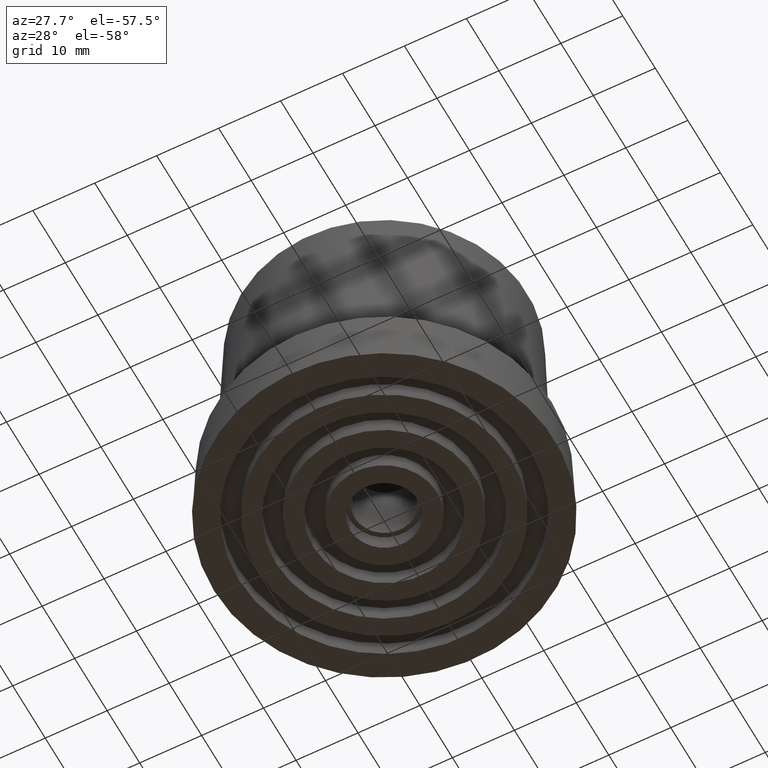
[diagram: clean part render]
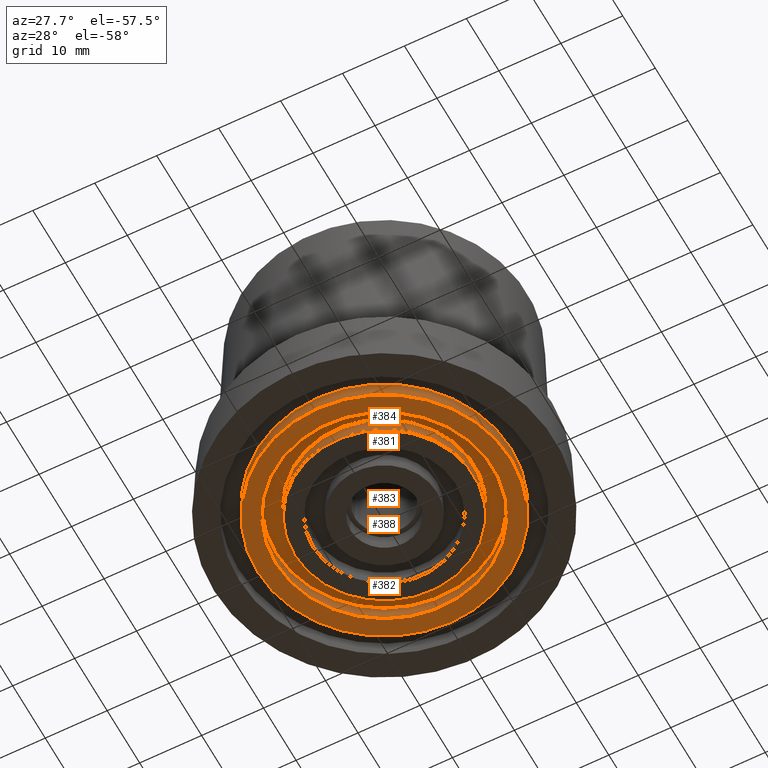
[diagram: same view with one multi-face feature highlighted, each face labeled with its STEP entity id]
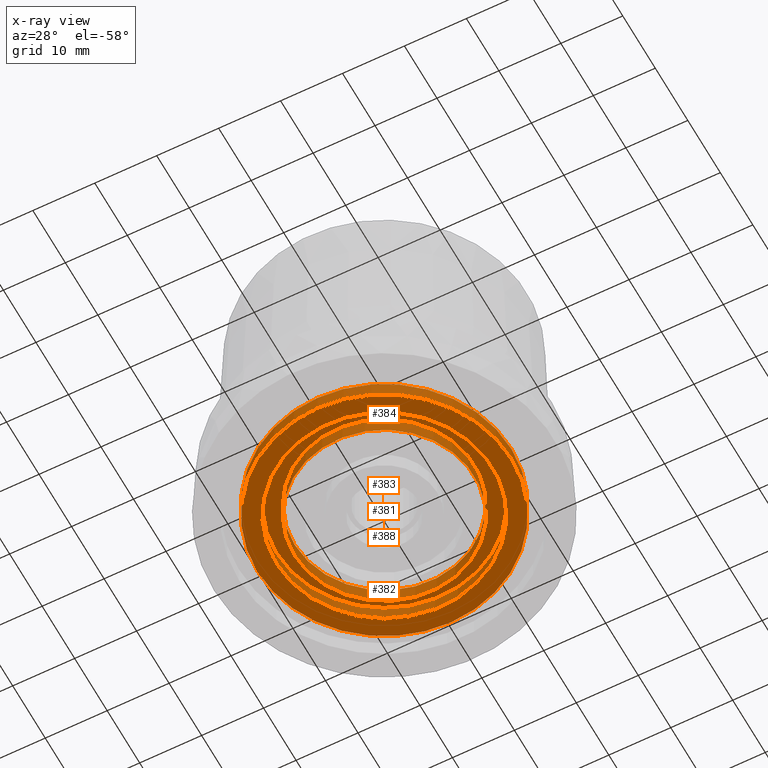
[diagram: x-ray of the same camera — body ghosted, the whole feature saturated]
A machine part, auxiliary view. The highlighted faces form ONE feature: a stepped (counterbored) hole: 3 coaxial cylindrical walls of radii 14.5 -> 17.5 -> 20.5 mm joined by 2 annular planar shoulder face(s). The faces share edges in the B-rep.
The next image is the same camera in x-ray: the body ghosted and the whole hole feature saturated, so the bore chain is visible through the body.
Their STEP definitions:
[1] entity #384 (Cylinder):
#44=FACE_BOUND('',#125,.T.);
#79=FACE_OUTER_BOUND('',#124,.T.);
#124=EDGE_LOOP('',(#304));
#125=EDGE_LOOP('',(#305));
#191=CIRCLE('',#435,20.5);
#192=CIRCLE('',#436,20.5);
#227=VERTEX_POINT('',#668);
#228=VERTEX_POINT('',#670);
#263=EDGE_CURVE('',#227,#227,#191,.T.);
#264=EDGE_CURVE('',#228,#228,#192,.T.);
#304=ORIENTED_EDGE('',*,*,#263,.T.);
#305=ORIENTED_EDGE('',*,*,#264,.F.);
#365=CYLINDRICAL_SURFACE('',#434,20.5);
#384=ADVANCED_FACE('',(#79,#44),#365,.T.);
#434=AXIS2_PLACEMENT_3D('',#667,#528,#529);
#435=AXIS2_PLACEMENT_3D('',#669,#530,#531);
#436=AXIS2_PLACEMENT_3D('',#671,#532,#533);
#528=DIRECTION('center_axis',(0.,0.,1.));
#529=DIRECTION('ref_axis',(1.,0.,0.));
#530=DIRECTION('center_axis',(0.,0.,-1.));
#531=DIRECTION('ref_axis',(1.,0.,0.));
#532=DIRECTION('center_axis',(0.,0.,-1.));
#533=DIRECTION('ref_axis',(1.,0.,0.));
#667=CARTESIAN_POINT('Origin',(0.,0.,0.));
#668=CARTESIAN_POINT('',(-20.5,2.51052593825207E-15,2.8));
#669=CARTESIAN_POINT('Origin',(0.,0.,2.8));
#670=CARTESIAN_POINT('',(-20.5,2.51052593825207E-15,0.));
#671=CARTESIAN_POINT('Origin',(0.,0.,0.));
[2] entity #382 (Cylinder):
#42=FACE_BOUND('',#121,.T.);
#77=FACE_OUTER_BOUND('',#120,.T.);
#120=EDGE_LOOP('',(#300));
#121=EDGE_LOOP('',(#301));
#189=CIRCLE('',#431,17.5);
#190=CIRCLE('',#432,17.5);
#225=VERTEX_POINT('',#662);
#226=VERTEX_POINT('',#664);
#261=EDGE_CURVE('',#225,#225,#189,.T.);
#262=EDGE_CURVE('',#226,#226,#190,.T.);
#300=ORIENTED_EDGE('',*,*,#261,.T.);
#301=ORIENTED_EDGE('',*,*,#262,.F.);
#364=CYLINDRICAL_SURFACE('',#430,17.5);
#382=ADVANCED_FACE('',(#77,#42),#364,.F.);
#430=AXIS2_PLACEMENT_3D('',#661,#520,#521);
#431=AXIS2_PLACEMENT_3D('',#663,#522,#523);
#432=AXIS2_PLACEMENT_3D('',#665,#524,#525);
#520=DIRECTION('center_axis',(0.,0.,1.));
#521=DIRECTION('ref_axis',(1.,0.,0.));
#522=DIRECTION('center_axis',(0.,0.,1.));
#523=DIRECTION('ref_axis',(1.,0.,0.));
#524=DIRECTION('center_axis',(0.,0.,1.));
#525=DIRECTION('ref_axis',(1.,0.,0.));
#661=CARTESIAN_POINT('Origin',(0.,0.,0.));
#662=CARTESIAN_POINT('',(-17.5,2.14313189850787E-15,2.8));
#663=CARTESIAN_POINT('Origin',(0.,0.,2.8));
#664=CARTESIAN_POINT('',(-17.5,2.14313189850787E-15,0.));
#665=CARTESIAN_POINT('Origin',(0.,0.,0.));
[3] entity #381 (Cylinder):
#41=FACE_BOUND('',#119,.T.);
#76=FACE_OUTER_BOUND('',#118,.T.);
#118=EDGE_LOOP('',(#298));
#119=EDGE_LOOP('',(#299));
#187=CIRCLE('',#428,14.5);
#188=CIRCLE('',#429,14.5);
#223=VERTEX_POINT('',#657);
#224=VERTEX_POINT('',#659);
#259=EDGE_CURVE('',#223,#223,#187,.T.);
#260=EDGE_CURVE('',#224,#224,#188,.T.);
#298=ORIENTED_EDGE('',*,*,#259,.T.);
#299=ORIENTED_EDGE('',*,*,#260,.F.);
#363=CYLINDRICAL_SURFACE('',#427,14.5);
#381=ADVANCED_FACE('',(#76,#41),#363,.T.);
#427=AXIS2_PLACEMENT_3D('',#656,#514,#515);
#428=AXIS2_PLACEMENT_3D('',#658,#516,#517);
#429=AXIS2_PLACEMENT_3D('',#660,#518,#519);
#514=DIRECTION('center_axis',(0.,0.,1.));
#515=DIRECTION('ref_axis',(1.,0.,0.));
#516=DIRECTION('center_axis',(0.,0.,-1.));
#517=DIRECTION('ref_axis',(1.,0.,0.));
#518=DIRECTION('center_axis',(0.,0.,-1.));
#519=DIRECTION('ref_axis',(1.,0.,0.));
#656=CARTESIAN_POINT('Origin',(0.,0.,0.));
#657=CARTESIAN_POINT('',(-14.5,1.77573785876366E-15,2.8));
#658=CARTESIAN_POINT('Origin',(0.,0.,2.8));
#659=CARTESIAN_POINT('',(-14.5,1.77573785876366E-15,0.));
#660=CARTESIAN_POINT('Origin',(0.,0.,0.));
[4] entity #383 (Plane):
#19=PLANE('',#433);
#43=FACE_BOUND('',#123,.T.);
#78=FACE_OUTER_BOUND('',#122,.T.);
#122=EDGE_LOOP('',(#302));
#123=EDGE_LOOP('',(#303));
#187=CIRCLE('',#428,14.5);
#189=CIRCLE('',#431,17.5);
#223=VERTEX_POINT('',#657);
#225=VERTEX_POINT('',#662);
#259=EDGE_CURVE('',#223,#223,#187,.T.);
#261=EDGE_CURVE('',#225,#225,#189,.T.);
#302=ORIENTED_EDGE('',*,*,#261,.F.);
#303=ORIENTED_EDGE('',*,*,#259,.F.);
#383=ADVANCED_FACE('',(#78,#43),#19,.F.);
#428=AXIS2_PLACEMENT_3D('',#658,#516,#517);
#431=AXIS2_PLACEMENT_3D('',#663,#522,#523);
#433=AXIS2_PLACEMENT_3D('',#666,#526,#527);
#516=DIRECTION('center_axis',(0.,0.,-1.));
#517=DIRECTION('ref_axis',(1.,0.,0.));
#522=DIRECTION('center_axis',(0.,0.,1.));
#523=DIRECTION('ref_axis',(1.,0.,0.));
#526=DIRECTION('center_axis',(0.,0.,1.));
#527=DIRECTION('ref_axis',(1.,0.,0.));
#657=CARTESIAN_POINT('',(-14.5,1.77573785876366E-15,2.8));
#658=CARTESIAN_POINT('Origin',(0.,0.,2.8));
#662=CARTESIAN_POINT('',(-17.5,2.14313189850787E-15,2.8));
#663=CARTESIAN_POINT('Origin',(0.,0.,2.8));
#666=CARTESIAN_POINT('Origin',(1.02447853411387E-15,-4.22942104619107E-16,
2.8));
[5] entity #388 (Plane):
#22=PLANE('',#443);
#48=FACE_BOUND('',#133,.T.);
#83=FACE_OUTER_BOUND('',#132,.T.);
#132=EDGE_LOOP('',(#312));
#133=EDGE_LOOP('',(#313));
#190=CIRCLE('',#432,17.5);
#192=CIRCLE('',#436,20.5);
#226=VERTEX_POINT('',#664);
#228=VERTEX_POINT('',#670);
#262=EDGE_CURVE('',#226,#226,#190,.T.);
#264=EDGE_CURVE('',#228,#228,#192,.T.);
#312=ORIENTED_EDGE('',*,*,#264,.T.);
#313=ORIENTED_EDGE('',*,*,#262,.T.);
#388=ADVANCED_FACE('',(#83,#48),#22,.F.);
#432=AXIS2_PLACEMENT_3D('',#665,#524,#525);
#436=AXIS2_PLACEMENT_3D('',#671,#532,#533);
#443=AXIS2_PLACEMENT_3D('',#681,#546,#547);
#524=DIRECTION('center_axis',(0.,0.,1.));
#525=DIRECTION('ref_axis',(1.,0.,0.));
#532=DIRECTION('center_axis',(0.,0.,-1.));
#533=DIRECTION('ref_axis',(1.,0.,0.));
#546=DIRECTION('center_axis',(0.,0.,1.));
#547=DIRECTION('ref_axis',(1.,0.,0.));
#664=CARTESIAN_POINT('',(-17.5,2.14313189850787E-15,0.));
#665=CARTESIAN_POINT('Origin',(0.,0.,0.));
#670=CARTESIAN_POINT('',(-20.5,2.51052593825207E-15,0.));
#671=CARTESIAN_POINT('Origin',(0.,0.,0.));
#681=CARTESIAN_POINT('Origin',(0.,0.,0.));